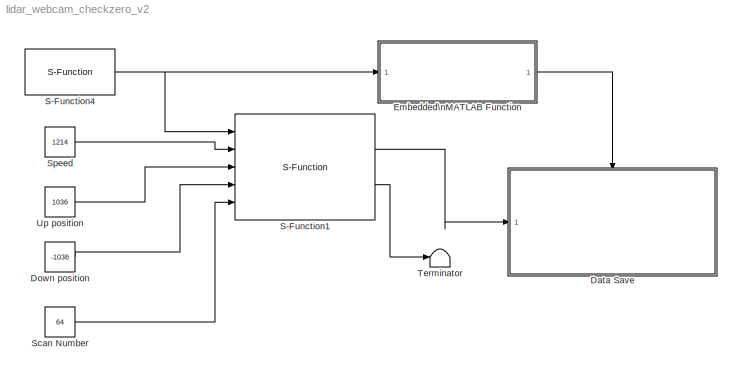
MODEL lidar_webcam_checkzero_v2
KIND model
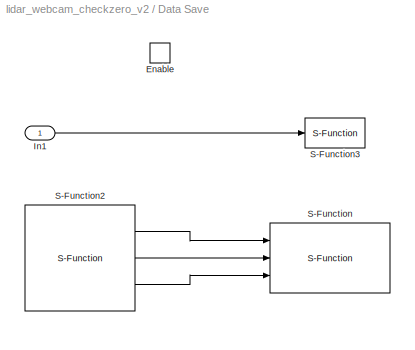
BLOCK [SubSystem] Data Save
  FunctionWithSeparateData = off
  MaskHideContents = off
  MinAlgLoopOccurrences = off
  Opaque = off
  Ports = [1, 0, 1]
  PropExecContextOutsideSubsystem = off
  RTWSystemCode = Auto
  RequestExecContextInheritance = off
  TreatAsAtomicUnit = on
BLOCK [EnablePort] Data Save/Enable
  Ports = []
BLOCK [Inport] Data Save/In1
  IconDisplay = Port number
  OutDataType = fixdt(1, 16)
  OutScaling = 2^0
BLOCK [S-Function] Data Save/S-Function
  EnableBusSupport = off
  FunctionName = videoExport_v2
  Ports = [3]
BLOCK [S-Function] Data Save/S-Function2
  EnableBusSupport = off
  FunctionName = WebcamTest
  Ports = [0, 3]
BLOCK [S-Function] Data Save/S-Function3
  EnableBusSupport = off
  FunctionName = lidarExport
  Ports = [1]
BLOCK [Constant] Down position
  OutDataType = fixdt(1, 16)
  OutScaling = 2^0
  Value = -1036
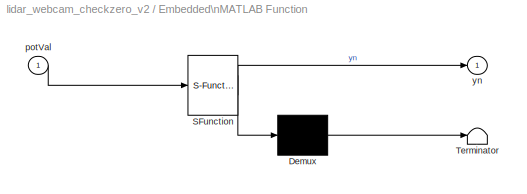
BLOCK [SubSystem] Embedded\nMATLAB Function
  FunctionWithSeparateData = off
  MaskDescription = Embedded MATLAB block
  MaskDisplay = disp('check_pot_val');
  MaskHideContents = off
  MaskIconFrame = on
  MaskIconOpaque = off
  MaskIconRotate = none
  MaskIconUnits = autoscale
  MaskPortRotate = default
  MaskSelfModifiable = on
  MaskType = Stateflow
  MinAlgLoopOccurrences = off
  Opaque = off
  PermitHierarchicalResolution = ExplicitOnly
  Ports = [1, 1]
  PropExecContextOutsideSubsystem = off
  RTWSystemCode = Auto
  RequestExecContextInheritance = off
BLOCK [Demux] Embedded\nMATLAB Function/ Demux 
  Outputs = 1
  Ports = [1, 1]
BLOCK [S-Function] Embedded\nMATLAB Function/ SFunction 
  EnableBusSupport = on
  FunctionName = sf_sfun
  PortCounts = [1 2]
  Ports = [1, 2]
  Tag = Stateflow S-Function lidar_webcam_checkzero_v2 2
BLOCK [Terminator] Embedded\nMATLAB Function/ Terminator 
BLOCK [Inport] Embedded\nMATLAB Function/potVal
  IconDisplay = Port number
  OutDataType = sfix(16)
  OutScaling = 2^0
BLOCK [Outport] Embedded\nMATLAB Function/yn
  IconDisplay = Port number
  OutDataType = sfix(16)
  OutScaling = 2^0
BLOCK [S-Function] S-Function1
  EnableBusSupport = off
  FunctionName = lidar_zero_test_v4
  Ports = [5, 2]
BLOCK [S-Function] S-Function4
  EnableBusSupport = off
  FunctionName = pot_readerV2
  Ports = [0, 1]
BLOCK [Constant] Scan Number
  OutDataType = fixdt(1, 16)
  OutScaling = 2^0
  Value = 64
BLOCK [Constant] Speed
  OutDataType = fixdt(1, 16)
  OutScaling = 2^0
  Value = 1214
BLOCK [Terminator] Terminator
BLOCK [Constant] Up position
  OutDataType = fixdt(1, 16)
  OutScaling = 2^0
  Value = 1036
LINE Data Save/In1:1 -> Data Save/S-Function3:1
LINE Data Save/S-Function2:1 -> Data Save/S-Function:1
LINE Data Save/S-Function2:2 -> Data Save/S-Function:2
LINE Data Save/S-Function2:3 -> Data Save/S-Function:3
LINE Down position:1 -> S-Function1:4
LINE Embedded\nMATLAB Function/ Demux :1 -> Embedded\nMATLAB Function/ Terminator :1
LINE Embedded\nMATLAB Function/ SFunction :1 -> Embedded\nMATLAB Function/ Demux :1
LINE Embedded\nMATLAB Function/ SFunction :2 -> Embedded\nMATLAB Function/yn:1
LINE Embedded\nMATLAB Function/potVal:1 -> Embedded\nMATLAB Function/ SFunction :1
LINE Embedded\nMATLAB Function:1 -> Data Save:enable
LINE S-Function1:1 -> Data Save:1
LINE S-Function1:2 -> Terminator:1
NET S-Function4:1 -> Embedded\nMATLAB Function:1, S-Function1:1
LINE Scan Number:1 -> S-Function1:5
LINE Speed:1 -> S-Function1:2
LINE Up position:1 -> S-Function1:3
note: NET lines group one-source signal fan-out (src -> all destinations, sorted); 1:1 wires keep LINE
CHART Embedded\nMATLAB Function states=1 transitions=1
  STATE_LABEL 'eML_blk_kernel()'
